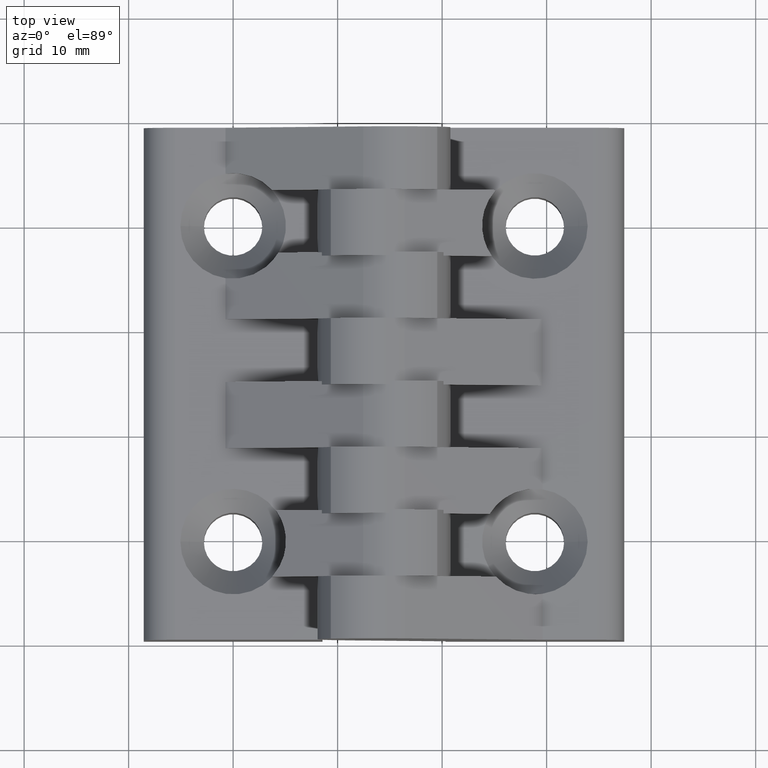
[diagram: clean part render]
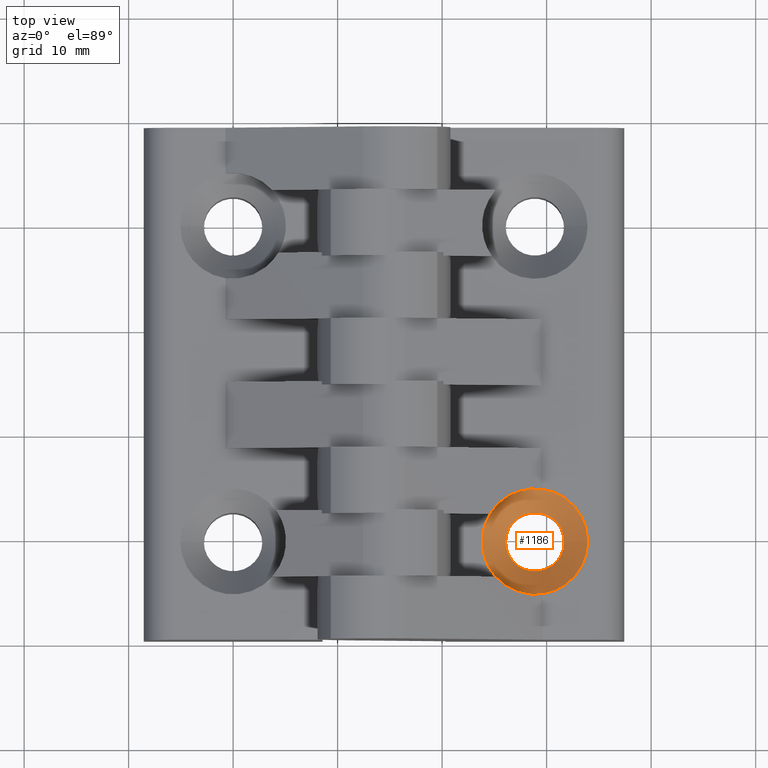
[diagram: same view with one face highlighted and labeled with its STEP entity id]
A machine part, top view. The second image highlights one B-rep face of the part: STEP entity #1186.
In plain terms, the highlighted face is a freeform B-spline surface patch.
Its self-contained STEP definition (entity closure, byte-faithful):
#75=CARTESIAN_POINT('',(29.601184118076901,-25.202686260898794,11.200123499865414));
#76=VERTEX_POINT('',#75);
#197=CARTESIAN_POINT('',(29.601184118076901,-35.197313739251832,11.200123499865414));
#198=VERTEX_POINT('',#197);
#772=CARTESIAN_POINT('',(25.139650262157943,-33.600000000037660,11.200123499865585));
#773=VERTEX_POINT('',#772);
#814=CARTESIAN_POINT('',(24.544355075562208,-27.600000000037660,11.200123499865585));
#815=VERTEX_POINT('',#814);
#1026=CARTESIAN_POINT('',(33.923615982393898,-30.200000000075313,11.200123499865244));
#1027=VERTEX_POINT('',#1026);
#1028=CARTESIAN_POINT('',(28.873615982414321,-30.200000000075313,11.200123499865244));
#1029=DIRECTION('',(0.0,6.123234E-017,1.0));
#1030=DIRECTION('',(1.0,0.0,0.0));
#1031=AXIS2_PLACEMENT_3D('',#1028,#1029,#1030);
#1032=CIRCLE('',#1031,5.049999999979576);
#1033=EDGE_CURVE('',#1027,#76,#1032,.T.);
#1035=CARTESIAN_POINT('',(28.873615982414321,-30.200000000075313,11.200123499865244));
#1036=DIRECTION('',(0.0,6.123234E-017,1.0));
#1037=DIRECTION('',(1.0,0.0,0.0));
#1038=AXIS2_PLACEMENT_3D('',#1035,#1036,#1037);
#1039=CIRCLE('',#1038,5.049999999979576);
#1040=EDGE_CURVE('',#198,#1027,#1039,.T.);
#1054=CARTESIAN_POINT('',(28.873615982414321,-30.200000000075313,11.200123499865244));
#1055=DIRECTION('',(0.0,6.123234E-017,1.0));
#1056=DIRECTION('',(1.0,0.0,0.0));
#1057=AXIS2_PLACEMENT_3D('',#1054,#1055,#1056);
#1058=CIRCLE('',#1057,5.049999999979576);
#1059=EDGE_CURVE('',#815,#773,#1058,.T.);
#1102=CARTESIAN_POINT('',(31.673615982402907,-30.200000000075313,8.950123499874225));
#1103=VERTEX_POINT('',#1102);
#1113=CARTESIAN_POINT('',(26.073615982425736,-30.200000000075313,8.950123499874225));
#1114=VERTEX_POINT('',#1113);
#1115=CARTESIAN_POINT('',(28.873615982414321,-30.200000000075313,8.950123499874225));
#1116=DIRECTION('',(0.0,6.123234E-017,1.0));
#1117=DIRECTION('',(1.0,0.0,0.0));
#1118=AXIS2_PLACEMENT_3D('',#1115,#1116,#1117);
#1119=CIRCLE('',#1118,2.799999999988586);
#1120=EDGE_CURVE('',#1103,#1114,#1119,.T.);
#1122=CARTESIAN_POINT('',(28.873615982414321,-30.200000000075313,8.950123499874225));
#1123=DIRECTION('',(0.0,6.123234E-017,1.0));
#1124=DIRECTION('',(1.0,0.0,0.0));
#1125=AXIS2_PLACEMENT_3D('',#1122,#1123,#1124);
#1126=CIRCLE('',#1125,2.799999999988586);
#1127=EDGE_CURVE('',#1114,#1103,#1126,.T.);
#1132=CARTESIAN_POINT('',(31.673615982402907,-30.200000000075313,8.950123499874225));
#1133=CARTESIAN_POINT('',(31.673615982402911,-27.400000000086727,8.950123499874225));
#1134=CARTESIAN_POINT('',(28.873615982414321,-27.400000000086727,8.950123499874225));
#1135=CARTESIAN_POINT('',(26.073615982425736,-27.400000000086727,8.950123499874225));
#1136=CARTESIAN_POINT('',(26.073615982425736,-30.200000000075313,8.950123499874225));
#1137=CARTESIAN_POINT('',(26.073615982425736,-33.000000000063899,8.950123499874225));
#1138=CARTESIAN_POINT('',(28.873615982414321,-33.000000000063899,8.950123499874225));
#1139=CARTESIAN_POINT('',(31.673615982402911,-33.000000000063899,8.950123499874225));
#1140=CARTESIAN_POINT('',(31.673615982402907,-30.200000000075313,8.950123499874225));
#1141=CARTESIAN_POINT('',(33.923615982393898,-30.200000000075313,11.200123499865244));
#1142=CARTESIAN_POINT('',(33.923615982393898,-25.150000000095741,11.200123499865244));
#1143=CARTESIAN_POINT('',(28.873615982414321,-25.150000000095737,11.200123499865244));
#1144=CARTESIAN_POINT('',(23.823615982434745,-25.150000000095741,11.200123499865244));
#1145=CARTESIAN_POINT('',(23.823615982434745,-30.200000000075313,11.200123499865244));
#1146=CARTESIAN_POINT('',(23.823615982434745,-35.250000000054889,11.200123499865244));
#1147=CARTESIAN_POINT('',(28.873615982414321,-35.250000000054889,11.200123499865244));
#1148=CARTESIAN_POINT('',(33.923615982393898,-35.250000000054889,11.200123499865244));
#1149=CARTESIAN_POINT('',(33.923615982393898,-30.200000000075313,11.200123499865244));
#1157=(BOUNDED_SURFACE()B_SPLINE_SURFACE(2,1,((#1132,#1141),(#1133,#1142),(#1134,#1143),(#1135,#1144),(#1136,#1145),(#1137,#1146),(#1138,#1147),(#1139,#1148),(#1140,#1149)),.UNSPECIFIED.,.T.,.F.,.U.)B_SPLINE_SURFACE_WITH_KNOTS((3,2,2,2,3),(2,2),(0.0,0.250000000000000,0.500000000000000,0.750000000000000,1.0),(0.0,3.181980515326742),.UNSPECIFIED.)GEOMETRIC_REPRESENTATION_ITEM()RATIONAL_B_SPLINE_SURFACE(((1.0,1.0),(0.707106781186548,0.707106781186548),(1.0,1.0),(0.707106781186548,0.707106781186548),(1.0,1.0),(0.707106781186548,0.707106781186548),(1.0,1.0),(0.707106781186548,0.707106781186548),(1.0,1.0)))REPRESENTATION_ITEM('')SURFACE());
#1158=CARTESIAN_POINT('',(31.673615982402907,-30.200000000075313,8.950123499874225));
#1159=DIRECTION('',(0.707106781186543,0.0,0.707106781186552));
#1160=VECTOR('',#1159,3.181980515326742);
#1161=LINE('',#1158,#1160);
#1162=EDGE_CURVE('',#1103,#1027,#1161,.T.);
#1163=ORIENTED_EDGE('',*,*,#1162,.T.);
#1164=ORIENTED_EDGE('',*,*,#1033,.T.);
#1165=CARTESIAN_POINT('',(28.873615982414321,-30.200000000075313,11.200123499865244));
#1166=DIRECTION('',(0.0,6.123234E-017,1.0));
#1167=DIRECTION('',(1.0,0.0,0.0));
#1168=AXIS2_PLACEMENT_3D('',#1165,#1166,#1167);
#1169=CIRCLE('',#1168,5.049999999979576);
#1170=EDGE_CURVE('',#76,#815,#1169,.T.);
#1171=ORIENTED_EDGE('',*,*,#1170,.T.);
#1172=ORIENTED_EDGE('',*,*,#1059,.T.);
#1173=CARTESIAN_POINT('',(28.873615982414321,-30.200000000075313,11.200123499865244));
#1174=DIRECTION('',(0.0,6.123234E-017,1.0));
#1175=DIRECTION('',(1.0,0.0,0.0));
#1176=AXIS2_PLACEMENT_3D('',#1173,#1174,#1175);
#1177=CIRCLE('',#1176,5.049999999979576);
#1178=EDGE_CURVE('',#773,#198,#1177,.T.);
#1179=ORIENTED_EDGE('',*,*,#1178,.T.);
#1180=ORIENTED_EDGE('',*,*,#1040,.T.);
#1181=ORIENTED_EDGE('',*,*,#1162,.F.);
#1182=ORIENTED_EDGE('',*,*,#1127,.F.);
#1183=ORIENTED_EDGE('',*,*,#1120,.F.);
#1184=EDGE_LOOP('',(#1163,#1164,#1171,#1172,#1179,#1180,#1181,#1182,#1183));
#1185=FACE_OUTER_BOUND('',#1184,.T.);
#1186=ADVANCED_FACE('',(#1185),#1157,.F.);